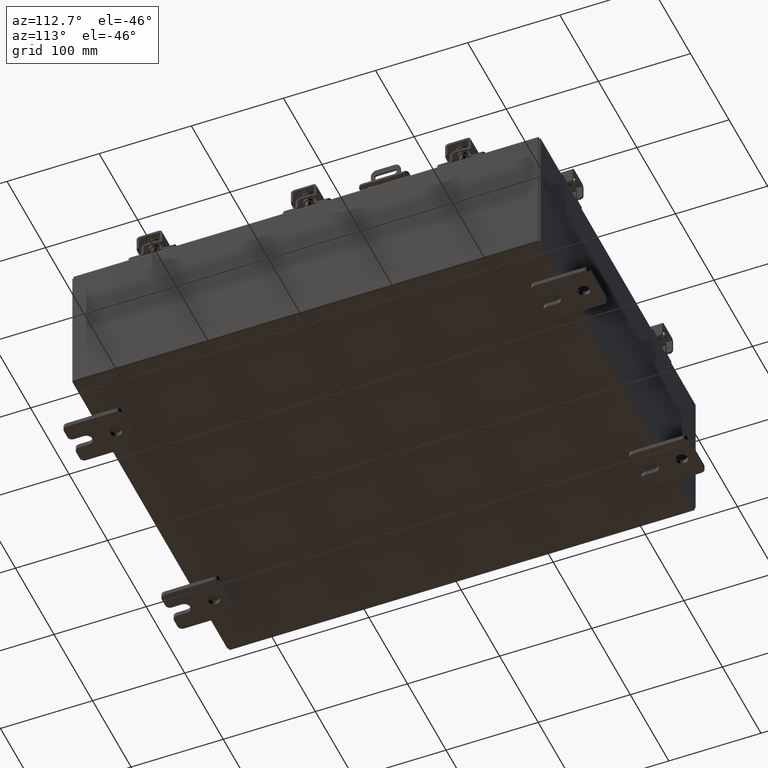
[diagram: clean part render]
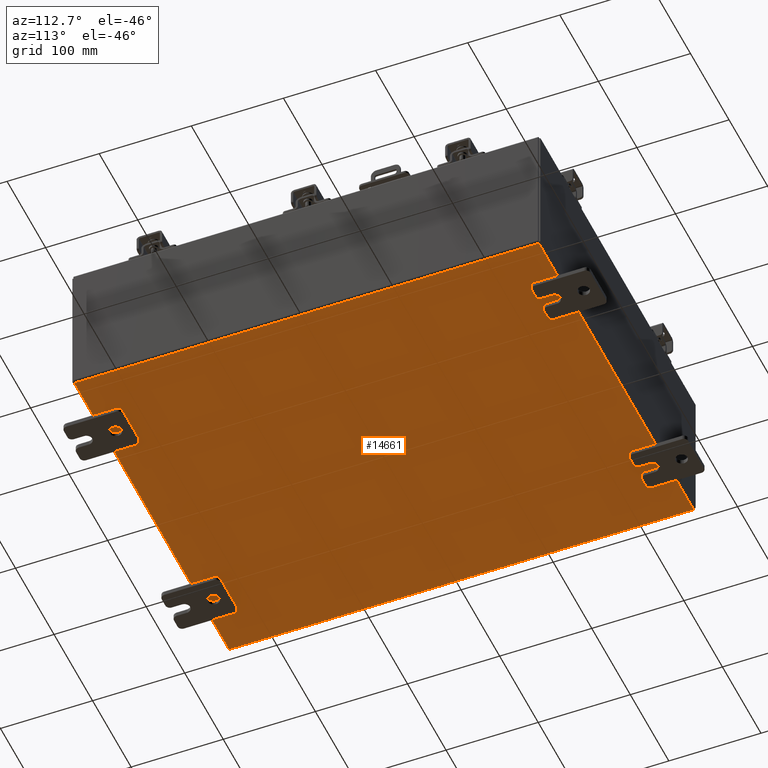
[diagram: same view with one face highlighted and labeled with its STEP entity id]
A machine part, auxiliary view. The second image highlights one B-rep face of the part: STEP entity #14661.
In plain terms, the highlighted planar face has unit normal (0, 0, -1).
Its self-contained STEP definition (entity closure, byte-faithful):
#350 = ORIENTED_EDGE ( 'NONE', *, *, #15779, .T. ) ;
#465 = CARTESIAN_POINT ( 'NONE',  ( 7.912300000000001900, -9.925300000000001800, -0.07470000000000015500 ) ) ;
#2054 = FACE_OUTER_BOUND ( 'NONE', #3559, .T. ) ;
#2947 = CARTESIAN_POINT ( 'NONE',  ( -7.912299999999997400, 9.925299999999998200, -0.07470000000000015500 ) ) ;
#3559 = EDGE_LOOP ( 'NONE', ( #13395, #350, #12930, #16993 ) ) ;
#3638 = CARTESIAN_POINT ( 'NONE',  ( 0.0000000000000000000, 0.0000000000000000000, -0.07470000000000015500 ) ) ;
#4189 = VERTEX_POINT ( 'NONE', #17519 ) ;
#4517 = VECTOR ( 'NONE', #6942, 39.37007874015748100 ) ;
#6563 = AXIS2_PLACEMENT_3D ( 'NONE', #3638, #17528, #7115 ) ;
#6942 = DIRECTION ( 'NONE',  ( -0.0000000000000000000, -1.000000000000000000, -0.0000000000000000000 ) ) ;
#7115 = DIRECTION ( 'NONE',  ( -1.000000000000000000, 0.0000000000000000000, -0.0000000000000000000 ) ) ;
#9666 = LINE ( 'NONE', #17430, #4517 ) ;
#10836 = VECTOR ( 'NONE', #16199, 39.37007874015748100 ) ;
#11381 = LINE ( 'NONE', #14468, #10836 ) ;
#11746 = EDGE_CURVE ( 'NONE', #15659, #15119, #11381, .T. ) ;
#11911 = LINE ( 'NONE', #16643, #20631 ) ;
#12203 = DIRECTION ( 'NONE',  ( -0.0000000000000000000, 1.000000000000000000, -0.0000000000000000000 ) ) ;
#12930 = ORIENTED_EDGE ( 'NONE', *, *, #11746, .F. ) ;
#13395 = ORIENTED_EDGE ( 'NONE', *, *, #20083, .F. ) ;
#13449 = EDGE_CURVE ( 'NONE', #15659, #15546, #9666, .T. ) ;
#13677 = VECTOR ( 'NONE', #12203, 39.37007874015748100 ) ;
#13788 = CARTESIAN_POINT ( 'NONE',  ( -7.912299999999997400, -9.925300000000001800, -0.07470000000000015500 ) ) ;
#14030 = PLANE ( 'NONE',  #6563 ) ;
#14468 = CARTESIAN_POINT ( 'NONE',  ( -7.999999999999997300, 9.925299999999998200, -0.07470000000000015500 ) ) ;
#14661 = ADVANCED_FACE ( 'NONE', ( #2054 ), #14030, .T. ) ;
#15119 = VERTEX_POINT ( 'NONE', #2947 ) ;
#15546 = VERTEX_POINT ( 'NONE', #465 ) ;
#15659 = VERTEX_POINT ( 'NONE', #16489 ) ;
#15779 = EDGE_CURVE ( 'NONE', #4189, #15119, #18314, .T. ) ;
#16199 = DIRECTION ( 'NONE',  ( -1.000000000000000000, -0.0000000000000000000, -0.0000000000000000000 ) ) ;
#16489 = CARTESIAN_POINT ( 'NONE',  ( 7.912300000000001900, 9.925299999999996500, -0.07470000000000015500 ) ) ;
#16643 = CARTESIAN_POINT ( 'NONE',  ( -7.999999999999997300, -9.925300000000001800, -0.07470000000000015500 ) ) ;
#16993 = ORIENTED_EDGE ( 'NONE', *, *, #13449, .T. ) ;
#17430 = CARTESIAN_POINT ( 'NONE',  ( 7.912300000000001900, 9.925299999999998200, -0.07470000000000015500 ) ) ;
#17519 = CARTESIAN_POINT ( 'NONE',  ( -7.912299999999997400, -9.925300000000000000, -0.07470000000000015500 ) ) ;
#17528 = DIRECTION ( 'NONE',  ( 0.0000000000000000000, 0.0000000000000000000, -1.000000000000000000 ) ) ;
#18314 = LINE ( 'NONE', #13788, #13677 ) ;
#18472 = DIRECTION ( 'NONE',  ( 1.000000000000000000, 0.0000000000000000000, 0.0000000000000000000 ) ) ;
#20083 = EDGE_CURVE ( 'NONE', #4189, #15546, #11911, .T. ) ;
#20631 = VECTOR ( 'NONE', #18472, 39.37007874015748100 ) ;